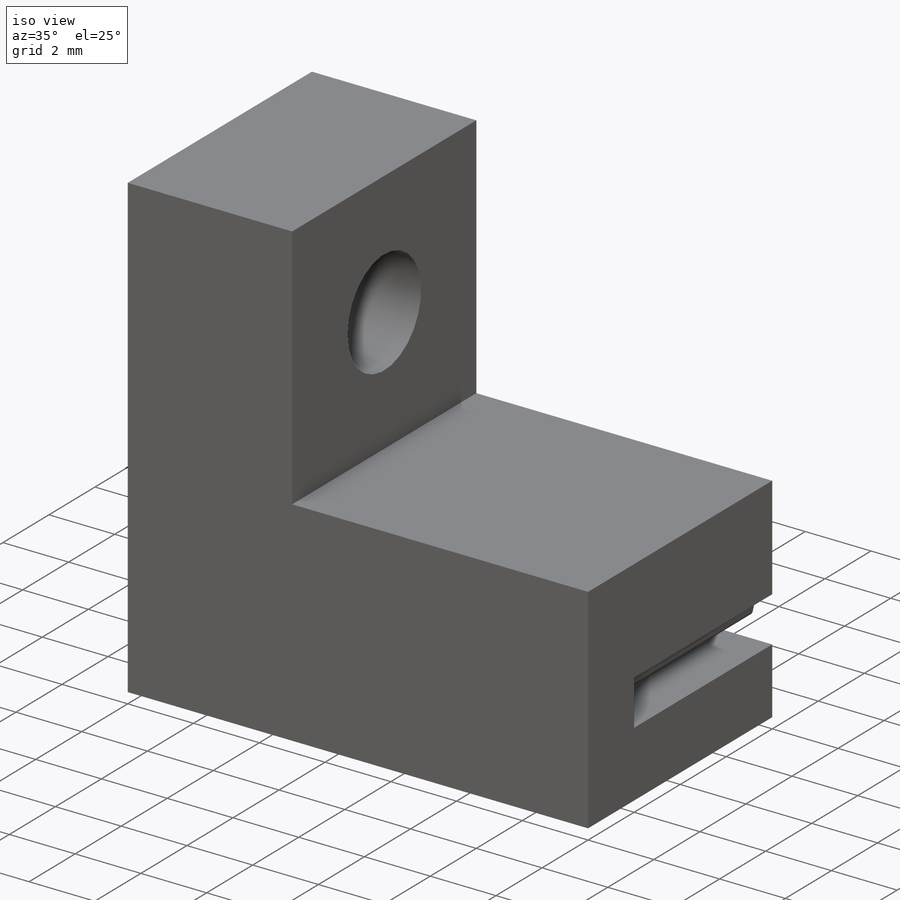
[diagram: iso view]
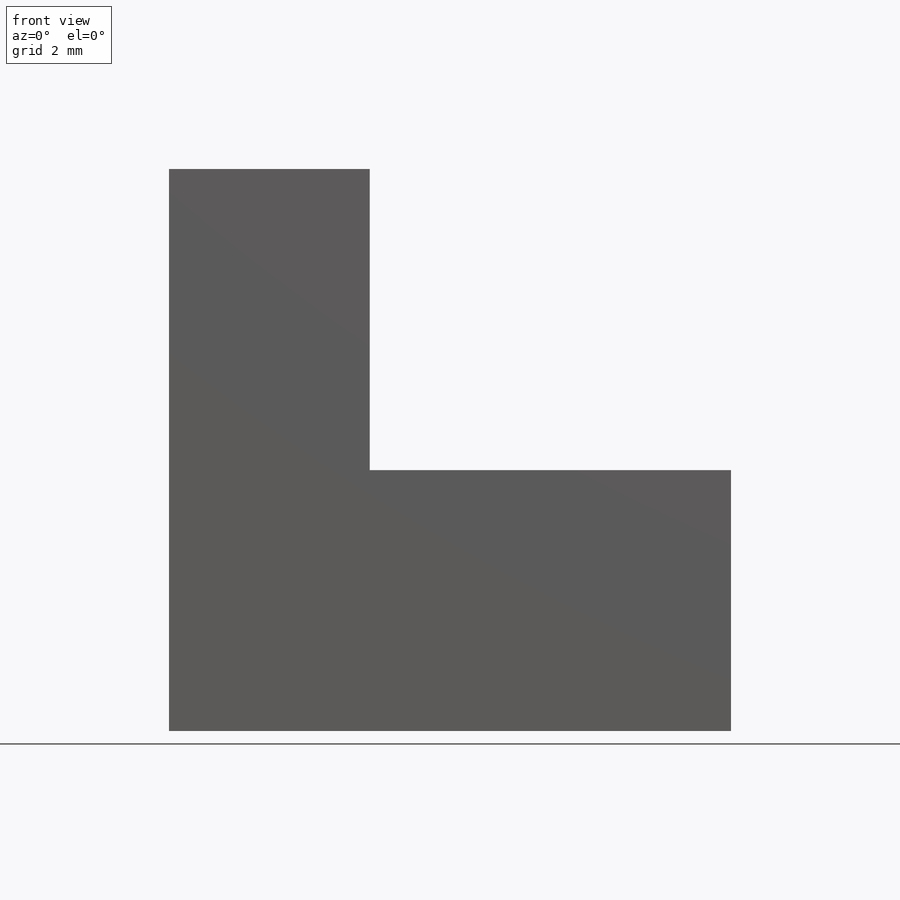
[diagram: front view]
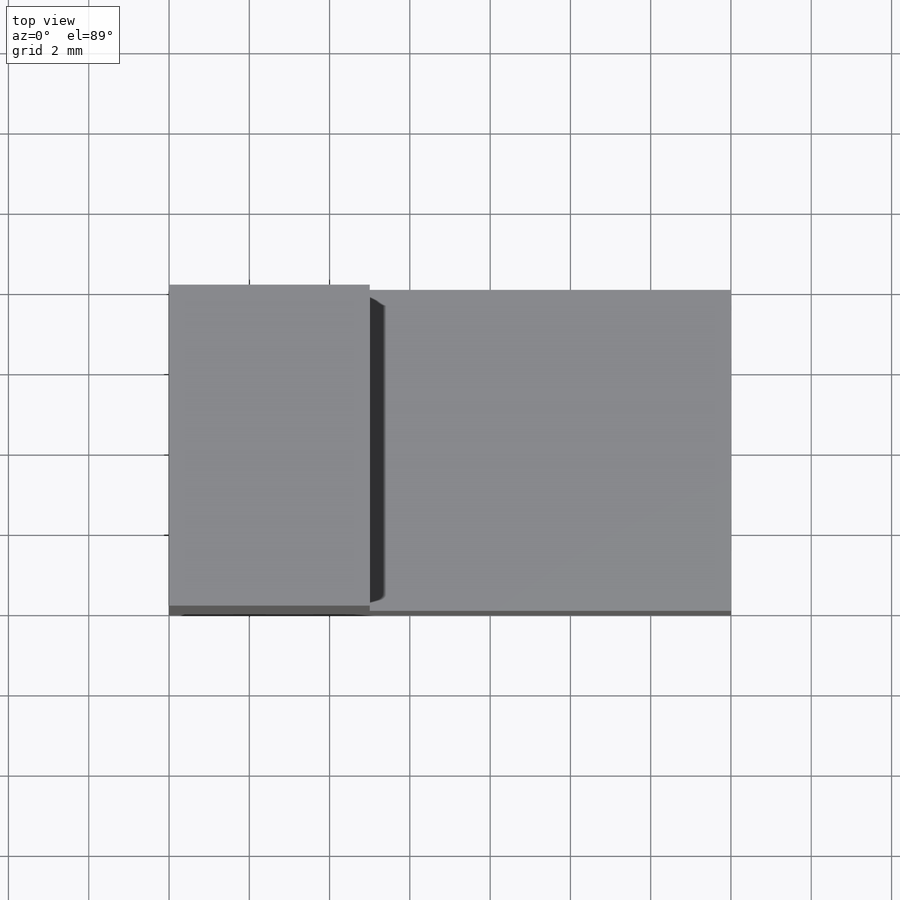
[diagram: top view]
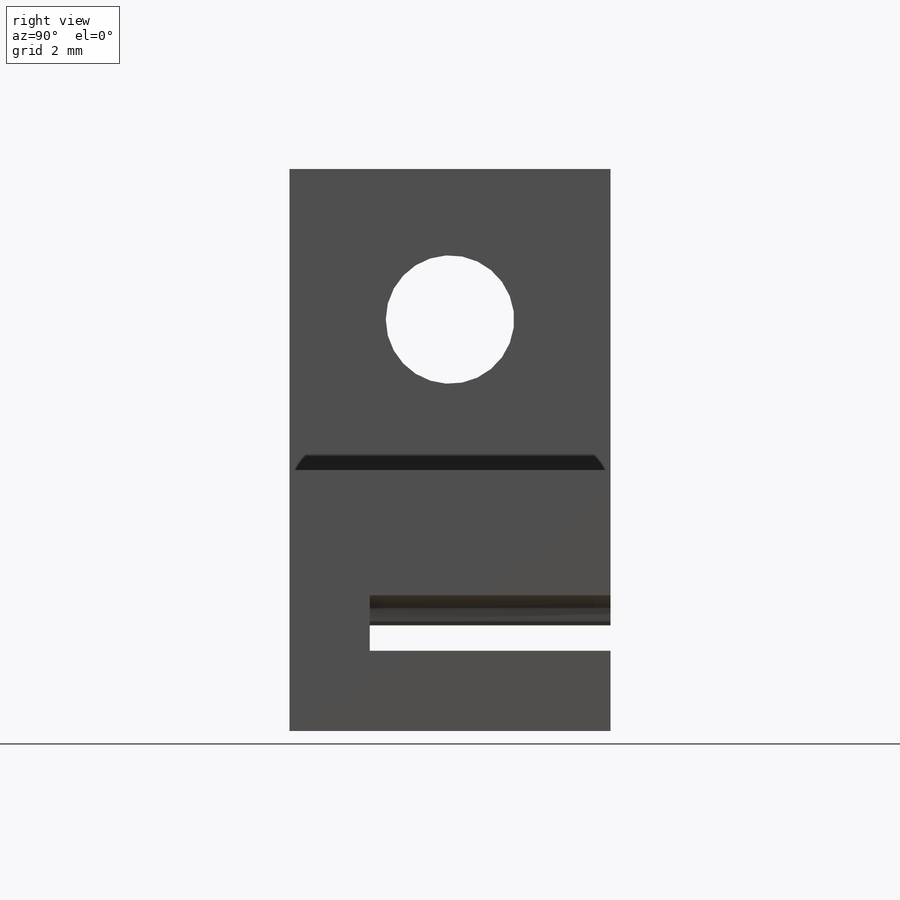
[diagram: right view]
SOLIDWORKS PART (.sldprt)
format: sldprt  version: not decoded by parser v0  size: 254,976 bytes
history: native  units: mm
features: sketch x5, cut_extrude x3, extrude x2, material x1, pattern_linear x1 (+12 scaffold rows collapsed)
feature tree (24):
  scaffold x12  (default folders/planes/origin — collapsed)
  material  "ABS"
  sketch  "Sketch3"  dims[D1=10.0mm D2=6.5mm D3=2.0mm]
  extrude  "Boss-Extrude2"  Depth=8mm
  sketch  "Sketch1"  dims[D1=0.555mm D2=1.0mm D3=0.15mm D4=0.4mm D5=0.75mm D6=2.0mm D7=1.38mm]
  cut_extrude  "Cut-Extrude1"  Depth=6mm
  pattern_linear  "LPattern2"  Count1=7 Count2=1 Spacing1=2mm Spacing2=10mm
  sketch  "Sketch4"  dims[D1=7.5mm D2=8.0mm]
  extrude  "Boss-Extrude3"  Depth=5mm
  sketch  "Sketch5"  dims[D1=3.75mm D2=5.5mm]
  cut_extrude  "Cut-Extrude2"  Depth=2mm
  sketch  "Sketch6"  dims[D1=3.2mm]
  cut_extrude  "Cut-Extrude3"  Depth=10mm
decode coverage: 11 of 11 modeling features carry decoded parameters
note: suppression state not decoded; provenance and decode notes live in map.json
